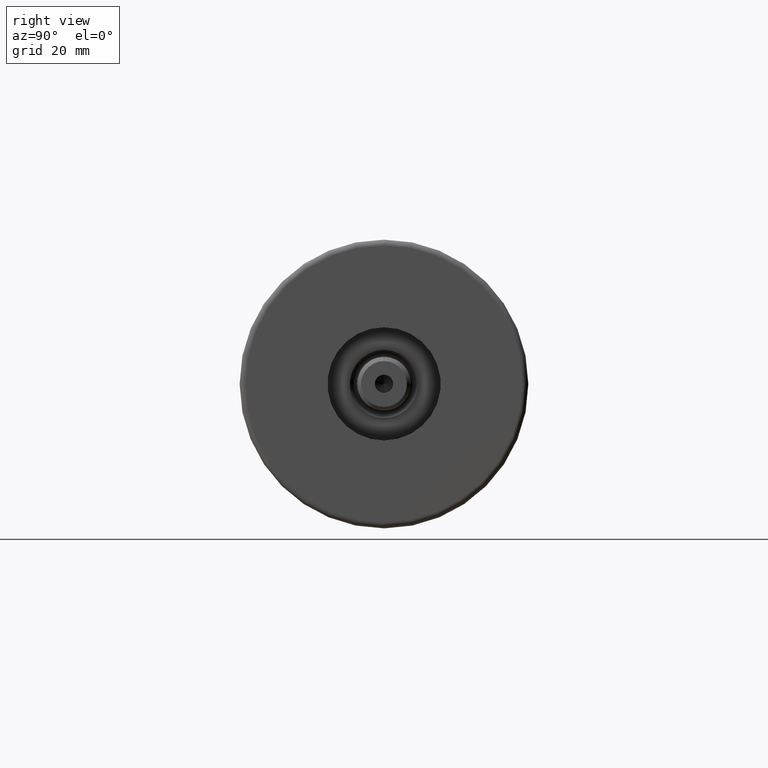
[diagram: clean part render]
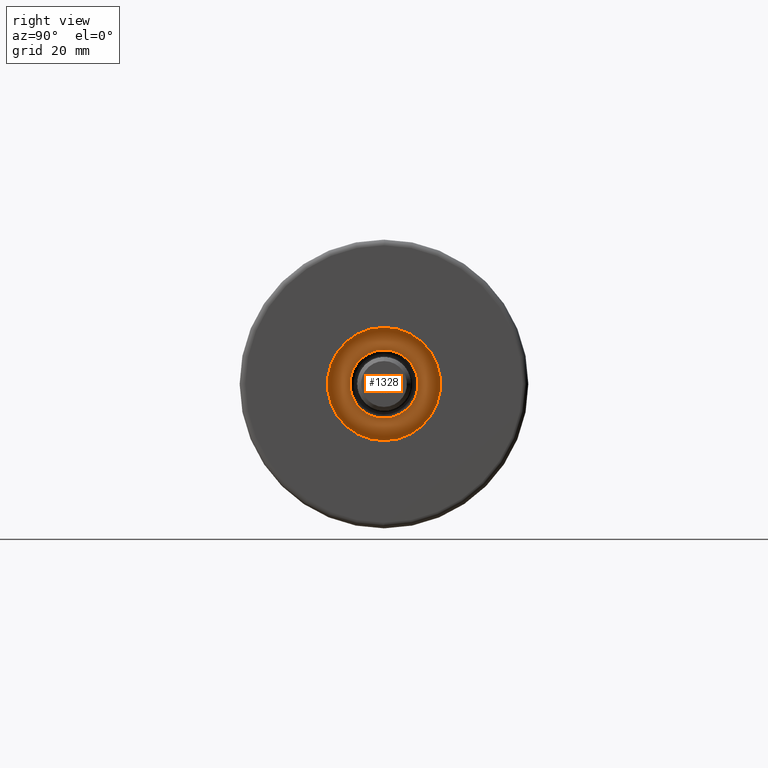
[diagram: same view with one face highlighted and labeled with its STEP entity id]
A machine part, right view. The second image highlights one B-rep face of the part: STEP entity #1328.
In plain terms, the highlighted planar face has unit normal (1, 0, -0).
Its self-contained STEP definition (entity closure, byte-faithful):
#38 = VERTEX_POINT ( 'NONE', #3969 ) ;
#207 = CARTESIAN_POINT ( 'NONE',  ( -12.05000000000000426, 1.475699392972560823E-15, 33.50000000000000000 ) ) ;
#628 = VERTEX_POINT ( 'NONE', #5064 ) ;
#841 = AXIS2_PLACEMENT_3D ( 'NONE', #2473, #4860, #2132 ) ;
#1040 = DIRECTION ( 'NONE',  ( 0.000000000000000000, 0.000000000000000000, 1.000000000000000000 ) ) ;
#1064 = DIRECTION ( 'NONE',  ( 1.000000000000000000, 0.000000000000000000, 0.000000000000000000 ) ) ;
#1070 = DIRECTION ( 'NONE',  ( 1.000000000000000000, 0.000000000000000000, -0.000000000000000000 ) ) ;
#1077 = CIRCLE ( 'NONE', #1670, 19.99999999999999645 ) ;
#1097 = PLANE ( 'NONE',  #2318 ) ;
#1190 = ORIENTED_EDGE ( 'NONE', *, *, #2959, .T. ) ;
#1328 = ADVANCED_FACE ( 'NONE', ( #4738, #1449 ), #1097, .T. ) ;
#1337 = VERTEX_POINT ( 'NONE', #1424 ) ;
#1353 = CIRCLE ( 'NONE', #841, 12.05000000000000426 ) ;
#1424 = CARTESIAN_POINT ( 'NONE',  ( 19.99999999999999645, 2.449293598294706119E-15, 33.50000000000000000 ) ) ;
#1449 = FACE_OUTER_BOUND ( 'NONE', #1805, .T. ) ;
#1519 = ORIENTED_EDGE ( 'NONE', *, *, #2603, .T. ) ;
#1670 = AXIS2_PLACEMENT_3D ( 'NONE', #2595, #1802, #1064 ) ;
#1691 = EDGE_LOOP ( 'NONE', ( #1695, #1190 ) ) ;
#1695 = ORIENTED_EDGE ( 'NONE', *, *, #4007, .T. ) ;
#1802 = DIRECTION ( 'NONE',  ( 0.000000000000000000, 0.000000000000000000, 1.000000000000000000 ) ) ;
#1805 = EDGE_LOOP ( 'NONE', ( #1519, #4570 ) ) ;
#2132 = DIRECTION ( 'NONE',  ( 1.000000000000000000, 0.000000000000000000, 0.000000000000000000 ) ) ;
#2305 = DIRECTION ( 'NONE',  ( 0.000000000000000000, 0.000000000000000000, 1.000000000000000000 ) ) ;
#2318 = AXIS2_PLACEMENT_3D ( 'NONE', #3498, #1040, #1070 ) ;
#2337 = DIRECTION ( 'NONE',  ( 1.000000000000000000, 0.000000000000000000, 0.000000000000000000 ) ) ;
#2473 = CARTESIAN_POINT ( 'NONE',  ( 0.000000000000000000, 0.000000000000000000, 33.50000000000000000 ) ) ;
#2595 = CARTESIAN_POINT ( 'NONE',  ( 0.000000000000000000, 0.000000000000000000, 33.50000000000000000 ) ) ;
#2603 = EDGE_CURVE ( 'NONE', #628, #1337, #3171, .T. ) ;
#2833 = AXIS2_PLACEMENT_3D ( 'NONE', #4938, #2305, #2337 ) ;
#2959 = EDGE_CURVE ( 'NONE', #3652, #38, #3515, .T. ) ;
#3171 = CIRCLE ( 'NONE', #2833, 19.99999999999999645 ) ;
#3218 = EDGE_CURVE ( 'NONE', #1337, #628, #1077, .T. ) ;
#3498 = CARTESIAN_POINT ( 'NONE',  ( 0.000000000000000000, 0.000000000000000000, 33.50000000000000000 ) ) ;
#3515 = CIRCLE ( 'NONE', #3596, 12.05000000000000426 ) ;
#3596 = AXIS2_PLACEMENT_3D ( 'NONE', #4690, #4226, #4306 ) ;
#3652 = VERTEX_POINT ( 'NONE', #207 ) ;
#3969 = CARTESIAN_POINT ( 'NONE',  ( 12.05000000000000426, 0.000000000000000000, 33.50000000000000000 ) ) ;
#4007 = EDGE_CURVE ( 'NONE', #38, #3652, #1353, .T. ) ;
#4226 = DIRECTION ( 'NONE',  ( -0.000000000000000000, -0.000000000000000000, -1.000000000000000000 ) ) ;
#4306 = DIRECTION ( 'NONE',  ( 1.000000000000000000, 0.000000000000000000, 0.000000000000000000 ) ) ;
#4570 = ORIENTED_EDGE ( 'NONE', *, *, #3218, .T. ) ;
#4690 = CARTESIAN_POINT ( 'NONE',  ( 0.000000000000000000, 0.000000000000000000, 33.50000000000000000 ) ) ;
#4738 = FACE_BOUND ( 'NONE', #1691, .T. ) ;
#4860 = DIRECTION ( 'NONE',  ( -0.000000000000000000, -0.000000000000000000, -1.000000000000000000 ) ) ;
#4938 = CARTESIAN_POINT ( 'NONE',  ( 0.000000000000000000, 0.000000000000000000, 33.50000000000000000 ) ) ;
#5064 = CARTESIAN_POINT ( 'NONE',  ( -19.99999999999999645, 0.000000000000000000, 33.50000000000000000 ) ) ;